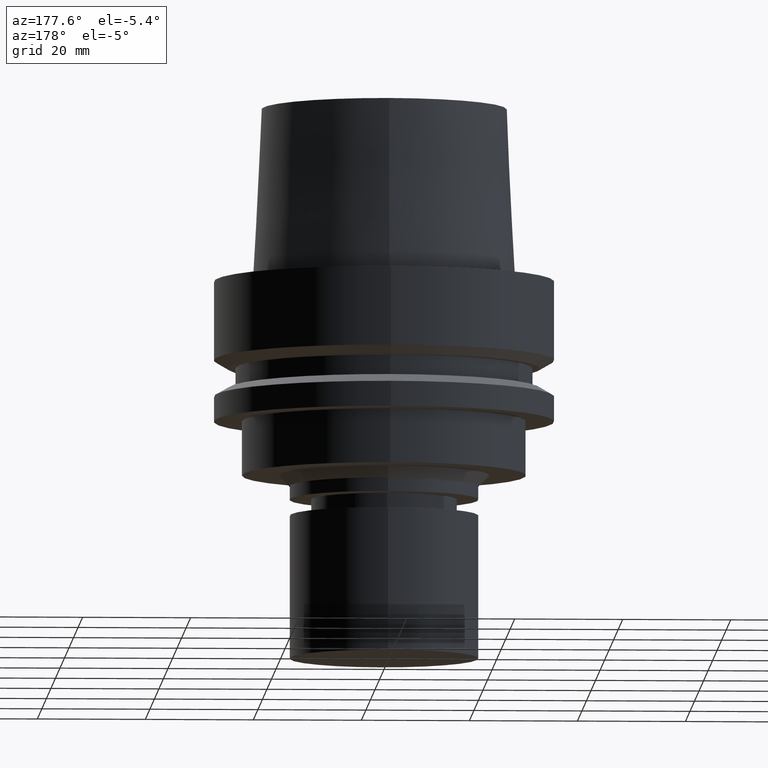
[diagram: clean part render]
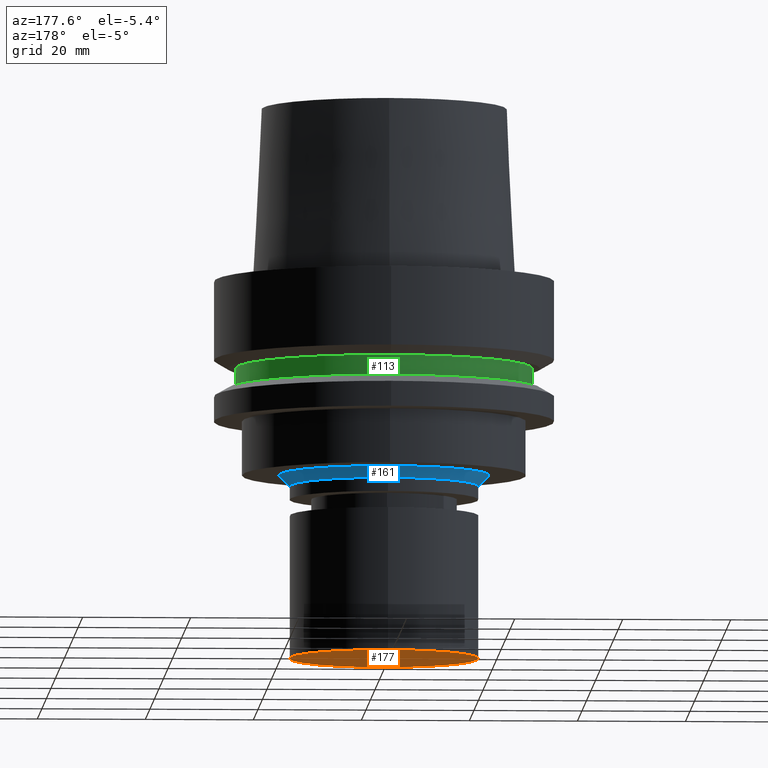
[diagram: same view with three faces highlighted in distinct colors, each labeled with its STEP entity id]
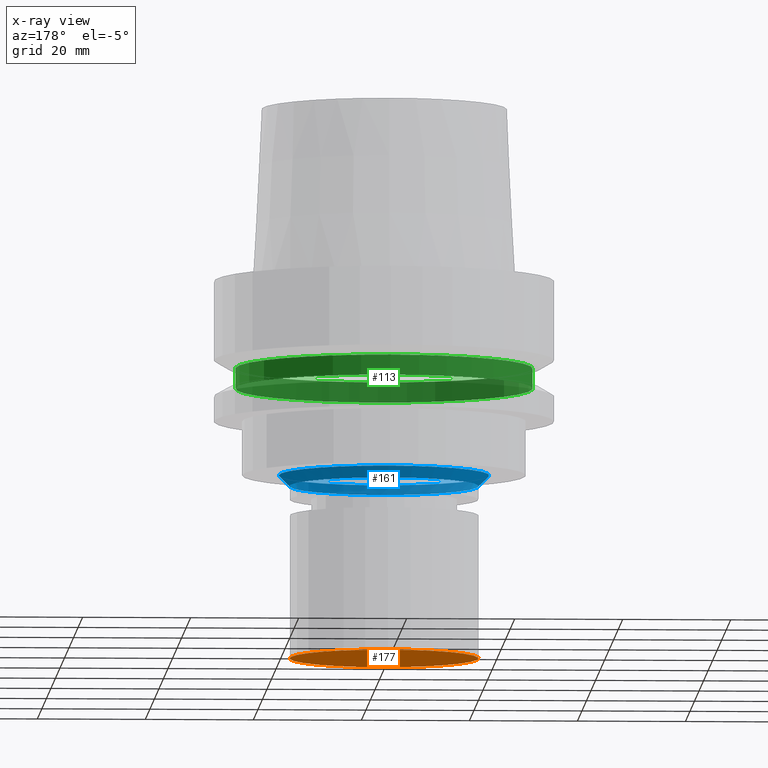
[diagram: x-ray of the same camera — body ghosted, the three highlighted faces saturated]
A machine part, auxiliary view with three faces highlighted in distinct colors.
The next image is the same camera in x-ray (body ghosted, the three faces saturated) — at least one of them is partly hidden behind the body in this view.
Their STEP definitions:

[orange] entity #177 — the highlighted planar face has unit normal (0, 0, -1).
#107=EDGE_CURVE('Unnamed[1]',#261,#261,#262,.T.);
#177=ADVANCED_FACE('Unnamed[1]',(#368),#369,.T.);
#261=VERTEX_POINT('',#471);
#262=CIRCLE('',#472,17.5);
#368=FACE_OUTER_BOUND('',#604,.T.);
#369=PLANE('',#605);
#471=CARTESIAN_POINT('',(4.28626379701573E-015,17.5,-69.9999999999999));
#472=AXIS2_PLACEMENT_3D('',#695,#696,#697);
#604=EDGE_LOOP('',(#814));
#605=AXIS2_PLACEMENT_3D('',#815,#816,#817);
#695=CARTESIAN_POINT('',(4.28626379701573E-015,8.57252759403146E-015,-69.9999999999999));
#696=DIRECTION('',(6.12323399573677E-017,1.22464679914735E-016,-1.0));
#697=DIRECTION('',(-1.23259516440783E-032,1.0,1.22464679914735E-016));
#814=ORIENTED_EDGE('',*,*,#107,.T.);
#815=CARTESIAN_POINT('',(4.28626379701573E-015,8.75000000000001,-69.9999999999999));
#816=DIRECTION('',(6.12323399573677E-017,1.22464679914735E-016,-1.0));
#817=DIRECTION('',(-1.23259516440783E-032,1.0,1.22464679914735E-016));

[blue] entity #161 — the highlighted conical surface has half-angle 45 deg.
#91=EDGE_CURVE('Unnamed[1]',#236,#236,#237,.T.);
#156=EDGE_CURVE('Unnamed[1]',#335,#335,#336,.T.);
#161=ADVANCED_FACE('Unnamed[1]',(#342,#343),#344,.T.);
#236=VERTEX_POINT('',#439);
#237=CIRCLE('',#440,19.4999999999997);
#335=VERTEX_POINT('',#563);
#336=CIRCLE('',#564,17.4999999999997);
#342=FACE_BOUND('',#572,.T.);
#343=FACE_BOUND('',#573,.T.);
#344=CONICAL_SURFACE('',#574,18.4999999999997,0.785398163397434);
#439=CARTESIAN_POINT('',(2.20436423846524E-015,19.4999999999997,-36.0));
#440=AXIS2_PLACEMENT_3D('',#668,#669,#670);
#563=CARTESIAN_POINT('',(2.32682891837998E-015,17.4999999999997,-38.0000000000001));
#564=AXIS2_PLACEMENT_3D('',#777,#778,#779);
#572=EDGE_LOOP('',(#784));
#573=EDGE_LOOP('',(#785));
#574=AXIS2_PLACEMENT_3D('',#786,#787,#788);
#668=CARTESIAN_POINT('',(2.20436423846524E-015,4.40872847693048E-015,-36.0));
#669=DIRECTION('',(-6.12323399573677E-017,-1.22464679914735E-016,1.0));
#670=DIRECTION('',(-1.23259516440783E-032,1.0,1.22464679914735E-016));
#777=CARTESIAN_POINT('',(2.32682891837998E-015,4.65365783675995E-015,-38.0000000000001));
#778=DIRECTION('',(-6.12323399573677E-017,-1.22464679914735E-016,1.0));
#779=DIRECTION('',(-1.23259516440783E-032,1.0,1.22464679914735E-016));
#784=ORIENTED_EDGE('',*,*,#91,.F.);
#785=ORIENTED_EDGE('',*,*,#156,.T.);
#786=CARTESIAN_POINT('',(2.26559657842261E-015,4.53119315684521E-015,-37.0000000000001));
#787=DIRECTION('',(-6.12323399573677E-017,-1.22464679914735E-016,1.0));
#788=DIRECTION('',(-1.23259516440783E-032,1.0,1.22464679914735E-016));

[green] entity #113 — the highlighted cylindrical surface (bore or boss wall) has radius 27.5 mm, axis along (-0, -0, 1).
#100=EDGE_CURVE('Unnamed[1]',#250,#250,#251,.T.);
#113=ADVANCED_FACE('Unnamed[1]',(#269,#270),#271,.T.);
#118=EDGE_CURVE('Unnamed[1]',#277,#277,#278,.T.);
#250=VERTEX_POINT('',#457);
#251=CIRCLE('',#458,27.5);
#269=FACE_BOUND('',#481,.T.);
#270=FACE_BOUND('',#482,.T.);
#271=CYLINDRICAL_SURFACE('',#483,27.4999999999994);
#277=VERTEX_POINT('',#491);
#278=CIRCLE('',#492,27.4999999999989);
#457=CARTESIAN_POINT('',(9.87371481812537E-016,27.5,-16.1249999999997));
#458=AXIS2_PLACEMENT_3D('',#683,#684,#685);
#481=EDGE_LOOP('',(#704));
#482=EDGE_LOOP('',(#705));
#483=AXIS2_PLACEMENT_3D('',#706,#707,#708);
#491=CARTESIAN_POINT('',(1.21699275665276E-015,27.4999999999989,-19.8750000000013));
#492=AXIS2_PLACEMENT_3D('',#714,#715,#716);
#683=CARTESIAN_POINT('',(9.87371481812538E-016,1.97474296362508E-015,-16.1249999999997));
#684=DIRECTION('',(-6.12323399573677E-017,-1.22464679914735E-016,1.0));
#685=DIRECTION('',(-1.23259516440783E-032,1.0,1.22464679914735E-016));
#704=ORIENTED_EDGE('',*,*,#100,.F.);
#705=ORIENTED_EDGE('',*,*,#118,.T.);
#706=CARTESIAN_POINT('',(1.10218211923265E-015,2.2043642384653E-015,-18.0000000000005));
#707=DIRECTION('',(-6.12323399573677E-017,-1.22464679914735E-016,1.0));
#708=DIRECTION('',(-1.23259516440783E-032,1.0,1.22464679914735E-016));
#714=CARTESIAN_POINT('',(1.21699275665276E-015,2.43398551330552E-015,-19.8750000000013));
#715=DIRECTION('',(-6.12323399573677E-017,-1.22464679914735E-016,1.0));
#716=DIRECTION('',(-1.23259516440783E-032,1.0,1.22464679914735E-016));